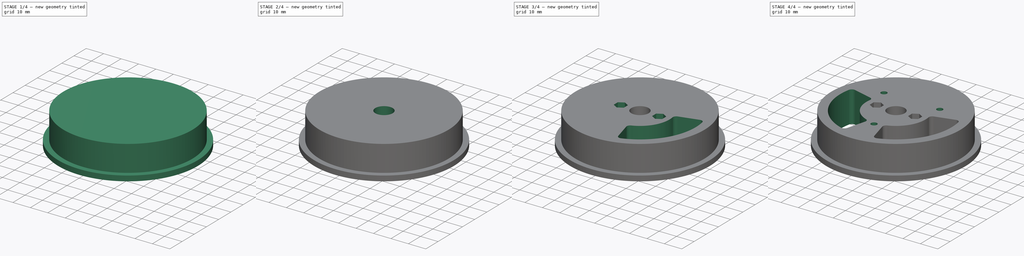
[diagram: build sequence overview — one tinted view per stage of 4, left to right]
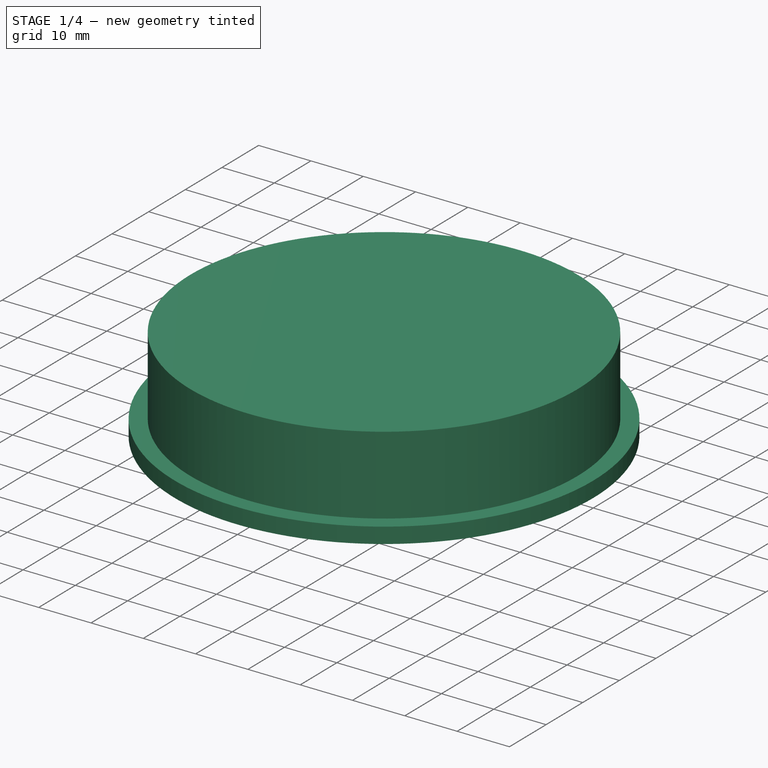
[diagram: stage 1 of 4 — iso view after this stage's code; geometry added in this stage tinted green]
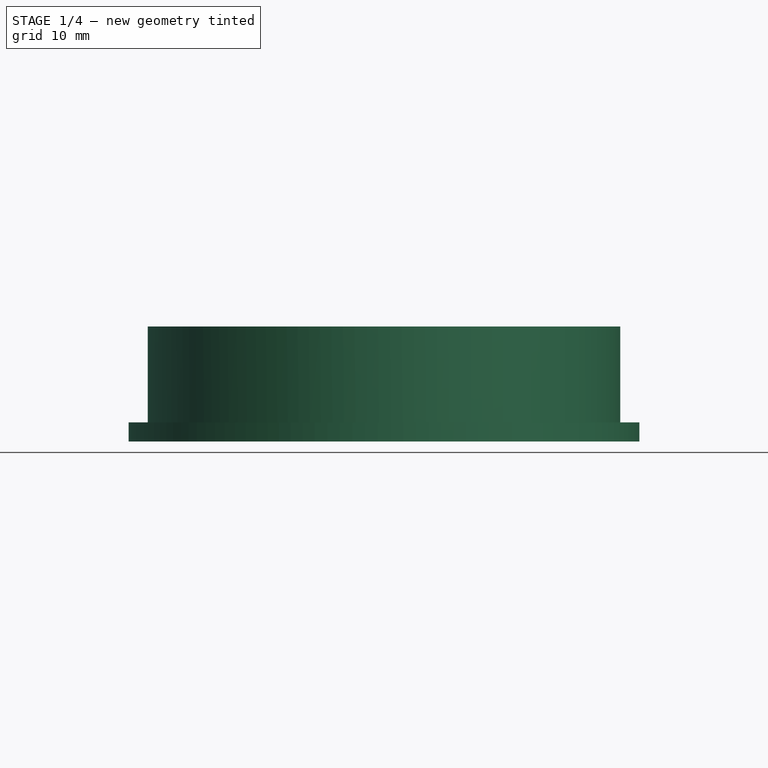
[diagram: stage 1 of 4 — front view after this stage's code; geometry added in this stage tinted green]
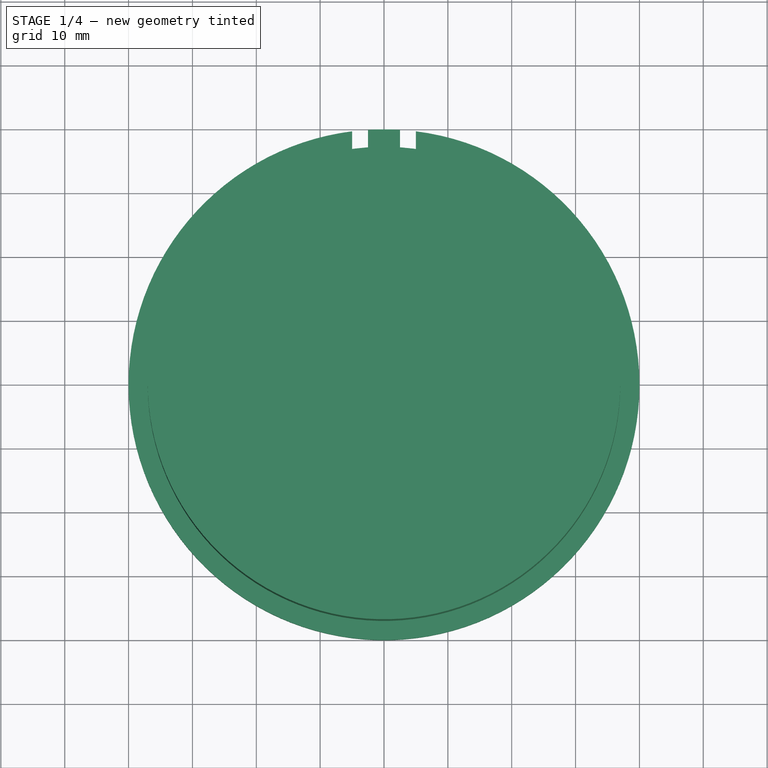
[diagram: stage 1 of 4 — top view after this stage's code; geometry added in this stage tinted green]
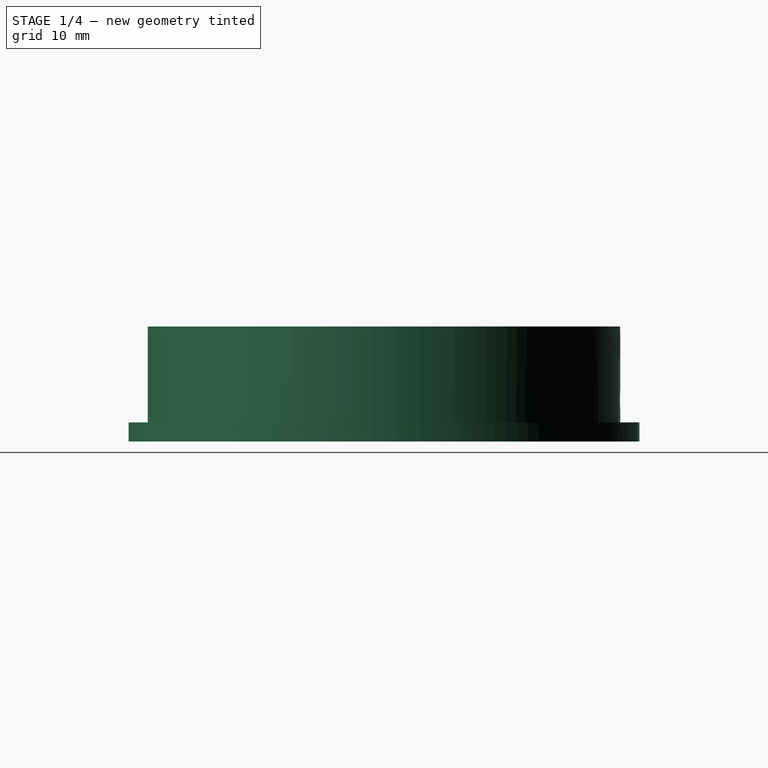
[diagram: stage 1 of 4 — right view after this stage's code; geometry added in this stage tinted green]
FCSTD DOCUMENT  (FreeCAD 0.19R24276 (Git))
Label: Art3Pulley
License: All rights reserved
LicenseURL: http://en.wikipedia.org/wiki/All_rights_reserved
objects: Sketcher::SketchObject×12, PartDesign::Pocket×11, PartDesign::Line×6, PartDesign::CoordinateSystem×4, PartDesign::Plane×2, PartDesign::Revolution×1, Spreadsheet::Sheet×1, PartDesign::Mirrored×1, PartDesign::Body×1
note: 50 computed .brp shape members not serialized (recipe doc carries the construction recipe); baked Part::Feature solids carry a one-line shape summary decoded from their .brp

FEATURE [Sketcher::SketchObject] Sketch
  FullyConstrained = true
  MapMode = 5
  Placement = pos=(0,0,0) rot=(1,0,0;1.5708rad)
  Support = -> [XZ_Plane]
  sketch-geometry (6):
    g0: LineSegment StartX=0 StartY=18 StartZ=0 EndX=37 EndY=18 EndZ=0
    g1: LineSegment StartX=37 StartY=18 StartZ=0 EndX=37 EndY=3 EndZ=0
    g2: LineSegment StartX=37 StartY=3 StartZ=0 EndX=40 EndY=3 EndZ=0
    g3: LineSegment StartX=40 StartY=3 StartZ=0 EndX=40 EndY=0 EndZ=0
    g4: LineSegment StartX=40 StartY=0 StartZ=0 EndX=0 EndY=0 EndZ=0
    g5: LineSegment StartX=0 StartY=0 StartZ=0 EndX=0 EndY=18 EndZ=0
  constraints (17):
    c: PointOnObject(g0,g-2)
    c: Horizontal(g0)
    c: Coincident(g0,g1)
    c: Vertical(g1)
    c: Coincident(g1,g2)
    c: Horizontal(g2)
    c: Coincident(g2,g3)
    c: Vertical(g3)
    c: Coincident(g3,g4)
    c: Coincident(g4,g-1)
    c: Horizontal(g4)
    c: Coincident(g4,g5)
    c: Coincident(g5,g0)
    c: DistanceX(g4,g4) = 40
    c: DistanceX(g0,g0) = 37
    c: DistanceY(g1,g1) = 15
    c: DistanceY(g3,g3) = 3
FEATURE [PartDesign::Revolution] Revolution
  Angle = 360
  Axis = (0,2e-16,1)
  Base = (0,0,0)
  Placement = pos=(0,0,0) rot=(1,0,0;1.5708rad)
  Profile = -> Sketch
  ReferenceAxis = -> Sketch [V_Axis]
  Refine = true
  Reversed = true
FEATURE [Sketcher::SketchObject] Sketch001
  FullyConstrained = true
  MapMode = 5
  Placement = pos=(0,0,0) rot=(1,0,0;3.14159rad)
  Support = -> [Revolution]
  sketch-geometry (14):
    g0: LineSegment StartX=-11.5 StartY=-19.5 StartZ=0 EndX=11.5 EndY=-19.5 EndZ=0
    g1: LineSegment StartX=11.5 StartY=-19.5 StartZ=0 EndX=11.5 EndY=-23 EndZ=0
    g2: LineSegment StartX=11.5 StartY=-23 StartZ=0 EndX=5 EndY=-29.5 EndZ=0
    g3: LineSegment StartX=5 StartY=-29.5 StartZ=0 EndX=5 EndY=-54.5 EndZ=0
    g4: LineSegment StartX=5 StartY=-54.5 StartZ=0 EndX=2.5 EndY=-54.5 EndZ=0
    g5: LineSegment StartX=2.5 StartY=-54.5 StartZ=0 EndX=2.5 EndY=-29.5 EndZ=0
    g6: LineSegment StartX=2.5 StartY=-29.5 StartZ=0 EndX=9 EndY=-23 EndZ=0
    g7: LineSegment StartX=9 StartY=-23 StartZ=0 EndX=-9 EndY=-23 EndZ=0
    g8: LineSegment StartX=-9 StartY=-23 StartZ=0 EndX=-2.5 EndY=-29.5 EndZ=0
    g9: LineSegment StartX=-2.5 StartY=-29.5 StartZ=0 EndX=-2.5 EndY=-54.5 EndZ=0
    g10: LineSegment StartX=-2.5 StartY=-54.5 StartZ=0 EndX=-5 EndY=-54.5 EndZ=0
    g11: LineSegment StartX=-5 StartY=-54.5 StartZ=0 EndX=-5 EndY=-29.5 EndZ=0
    g12: LineSegment StartX=-5 StartY=-29.5 StartZ=0 EndX=-11.5 EndY=-23 EndZ=0
    g13: LineSegment StartX=-11.5 StartY=-23 StartZ=0 EndX=-11.5 EndY=-19.5 EndZ=0
  constraints (38):
    c: Coincident(g0,g1)
    c: Vertical(g1)
    c: Coincident(g1,g2)
    c: Coincident(g2,g3)
    c: Vertical(g3)
    c: Coincident(g3,g4)
    c: Coincident(g4,g5)
    c: Vertical(g5)
    c: Coincident(g5,g6)
    c: Coincident(g6,g7)
    c: Coincident(g7,g8)
    c: Coincident(g8,g9)
    c: Coincident(g9,g10)
    c: Horizontal(g10)
    c: Coincident(g10,g11)
    c: Vertical(g11)
    c: Coincident(g11,g12)
    c: Coincident(g12,g13)
    c: Coincident(g13,g0)
    c: Vertical(g13)
    c: Symmetric(g0,g0,g-2)
    c: Symmetric(g7,g6,g-2)
    c: Equal(g1,g13)
    c: Symmetric(g8,g5,g-2)
    c: Horizontal(g4)
    c: Symmetric(g4,g9,g-2)
    c: Equal(g10,g4)
    c: Equal(g11,g9)
    c: Equal(g5,g3)
    c: Angle(g8,g7) = 0.785398
    c: Parallel(g8,g12)
    c: DistanceX(g4,g4) = 2.5
    c: DistanceY(g5,g5) = 25
    c: DistanceY(g0,g-1) = 19.5
    c: PointOnObject(g12,g7)
    c: DistanceY(g13,g13) = 3.5
    c: DistanceY(g2,g2) = 6.5
    c: DistanceX(g8,g5) = 5
FEATURE [PartDesign::Pocket] Pocket
  BaseFeature = -> Revolution
  Length = 13
  Length2 = 100
  Placement = pos=(0,0,0) rot=(1,0,0;1.5708rad)
  Profile = -> Sketch001
  Refine = true
  Type = 0
FEATURE [PartDesign::Plane] DatumPlane
  AttachmentOffset = pos=(0,0,-40) rot=(0,0,1;0rad)
  Length = 92.4985
  MapMode = 5
  Placement = pos=(0,40,8.9e-15) rot=(1,0,0;1.5708rad)
  ResizeMode = 0
  Support = -> [XZ_Plane]
  Width = 62.6381
FEATURE [Sketcher::SketchObject] Sketch002
  FullyConstrained = true
  MapMode = 5
  Placement = pos=(0,40,8.9e-15) rot=(1,0,0;1.5708rad)
  Support = -> [DatumPlane]
  expr: Constraints[1] = Spreadsheet.M3BoltBodyRadius
  sketch-geometry (1):
    g0: Circle CenterX=0 CenterY=6.5 CenterZ=0 NormalX=0 NormalY=0 NormalZ=1 AngleXU=0 Radius=1.7
  constraints (3):
    c: PointOnObject(g0,g-2)
    c: Radius(g0) = 1.7
    c: DistanceY(g-1,g0) = 6.5
FEATURE [Spreadsheet::Sheet] Spreadsheet
  cells = A2=M3BoltBodyRadius; B2(M3BoltBodyRadius)=1.7; A3=M3BoltHeadRadius; B3(M3BoltHeadRadius)=2.95; A4=M3NutCircumradius; B4(M3NutCircumradius)=3.35; A5=M3NutThickness; B5(M3NutThickness)=3; A6=Bearing655ZZBodyRadius; B6(Bearing655ZZBodyRadius)=8.199999999999999
FEATURE [PartDesign::Pocket] Pocket001
  BaseFeature = -> Pocket
  Length = 0
  Length2 = 100
  Placement = pos=(0,0,0) rot=(1,0,0;1.5708rad)
  Profile = -> Sketch002
  Refine = true
  Reversed = true
  Type = 3
  UpToFace = -> Pocket [Face14]
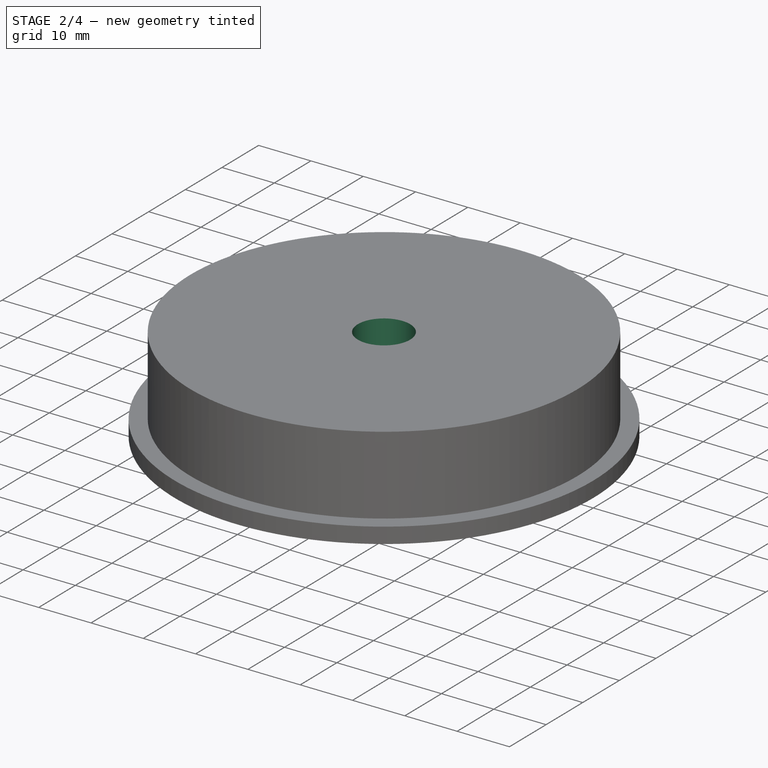
[diagram: stage 2 of 4 — iso view after this stage's code; geometry added in this stage tinted green]
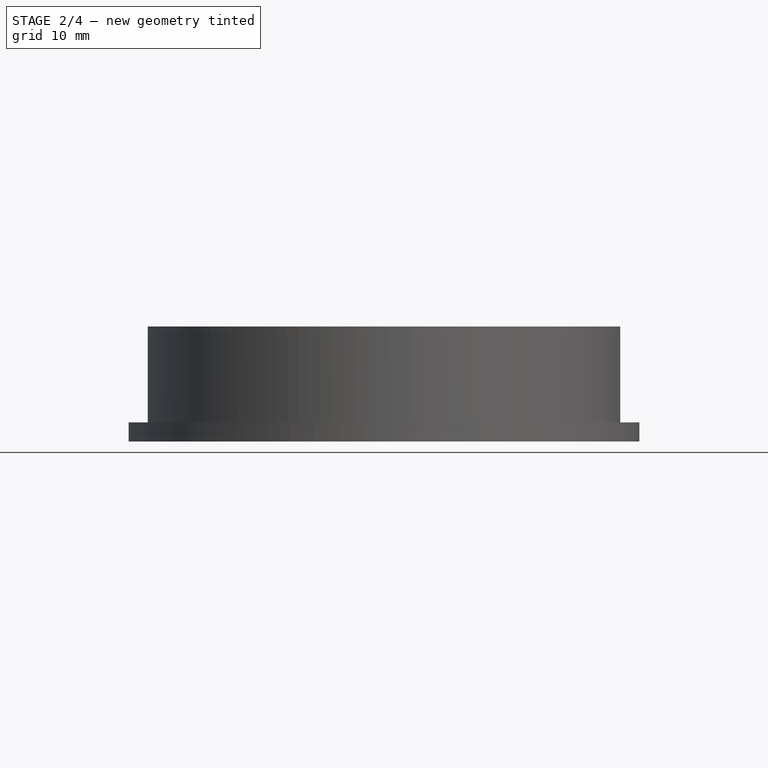
[diagram: stage 2 of 4 — front view after this stage's code; geometry added in this stage tinted green]
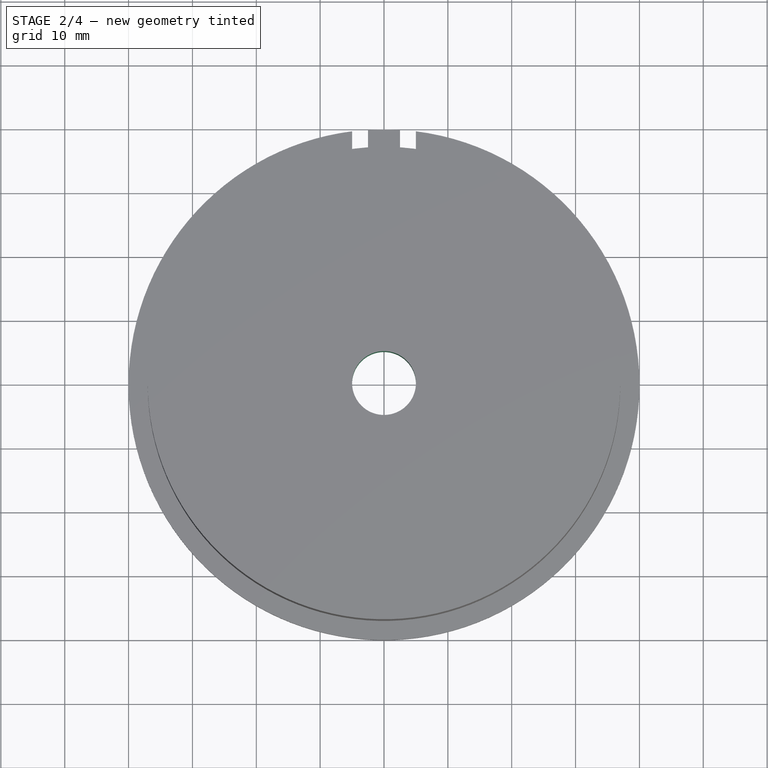
[diagram: stage 2 of 4 — top view after this stage's code; geometry added in this stage tinted green]
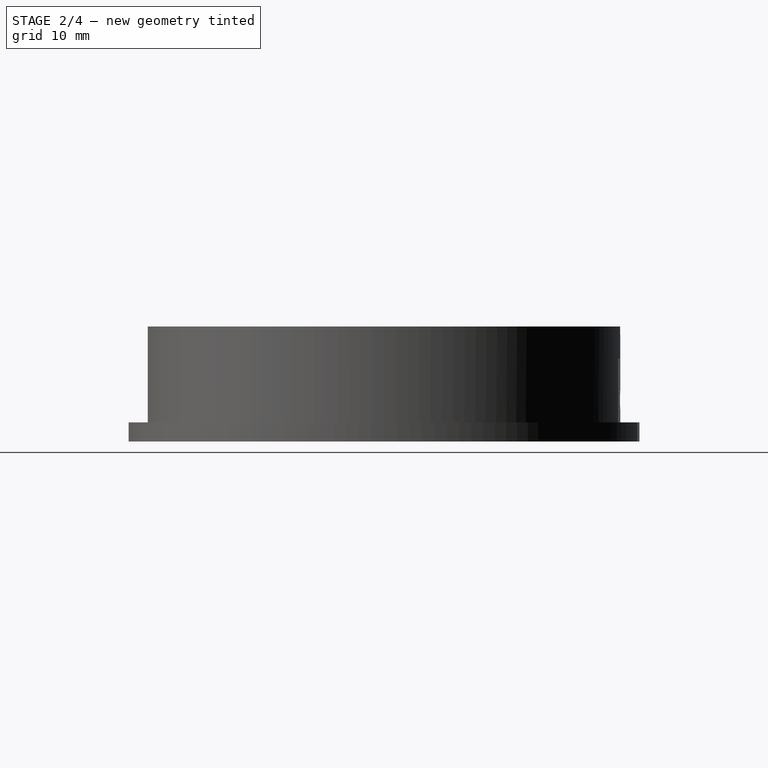
[diagram: stage 2 of 4 — right view after this stage's code; geometry added in this stage tinted green]
FEATURE [PartDesign::Plane] DatumPlane001
  AttachmentOffset = pos=(0,0,-2.85) rot=(0,0,1;0rad)
  Length = 92.4985
  MapMode = 5
  Placement = pos=(0,25.85,-2.87e-14) rot=(1,0,0;1.5708rad)
  ResizeMode = 0
  Support = -> [Pocket001]
  Width = 62.6381
FEATURE [Sketcher::SketchObject] Sketch003
  ExternalGeometry = -> [Pocket001]
  FullyConstrained = true
  MapMode = 5
  Placement = pos=(0,25.85,-2.87e-14) rot=(1,0,0;1.5708rad)
  Support = -> [DatumPlane001]
  expr: Constraints[18] = Spreadsheet.M3NutCircumradius
  sketch-geometry (10):
    g0: LineSegment StartX=0 StartY=9.85 StartZ=0 EndX=-2.90119 EndY=8.175 EndZ=0
    g1: LineSegment StartX=-2.90119 StartY=8.175 StartZ=0 EndX=-2.90119 EndY=4.825 EndZ=0
    g2: LineSegment StartX=-2.90119 StartY=4.825 StartZ=0 EndX=-4e-16 EndY=3.15 EndZ=0
    g3: LineSegment StartX=-3e-16 StartY=3.15 StartZ=0 EndX=2.90119 EndY=4.825 EndZ=0
    g4: LineSegment StartX=2.90119 StartY=4.825 StartZ=0 EndX=2.90119 EndY=8.175 EndZ=0
    g5: LineSegment StartX=2.90119 StartY=8.175 StartZ=0 EndX=0 EndY=9.85 EndZ=0
    g6: Circle CenterX=0 CenterY=6.5 CenterZ=0 NormalX=0 NormalY=0 NormalZ=1 AngleXU=0 Radius=3.35
    g7: LineSegment StartX=-2.90119 StartY=8.175 StartZ=0 EndX=-2.90119 EndY=-1.825 EndZ=0
    g8: LineSegment StartX=-2.90119 StartY=-1.825 StartZ=0 EndX=2.90119 EndY=-1.825 EndZ=0
    g9: LineSegment StartX=2.90119 StartY=-1.825 StartZ=0 EndX=2.90119 EndY=8.175 EndZ=0
  constraints (24):
    c: Coincident(g0,g1)
    c: Coincident(g1,g2)
    c: Coincident(g2,g3)
    c: Coincident(g3,g4)
    c: Coincident(g4,g5)
    c: Coincident(g5,g0)
    c: Equal(g0, g1-g5) x5
    c: PointOnObject(g0,g6)
    c: PointOnObject(g1,g6)
    c: PointOnObject(g2,g6)
    c: PointOnObject(g3,g6)
    c: PointOnObject(g4,g6)
    c: PointOnObject(g5,g6)
    c: PointOnObject(g0,g-2)
    c: Radius(g6) = 3.35
    c: Coincident(g0,g7)
    c: Vertical(g7)
    c: Coincident(g7,g8)
    c: Horizontal(g8)
    c: Coincident(g8,g9)
    c: Coincident(g9,g5)
    c: Vertical(g9)
    c: DistanceY(g9,g9) = 10
    c: Coincident(g6,g-3)
FEATURE [PartDesign::Pocket] Pocket002
  BaseFeature = -> Pocket001
  Length = 3
  Length2 = 100
  Midplane = true
  Placement = pos=(0,0,0) rot=(1,0,0;1.5708rad)
  Profile = -> Sketch003
  Refine = true
  Type = 0
  expr: Length = Spreadsheet.M3NutThickness
FEATURE [Sketcher::SketchObject] Sketch004
  FullyConstrained = true
  MapMode = 5
  Placement = pos=(0,1.19e-14,18) rot=(0,0,1;3.14159rad)
  Support = -> [Pocket002]
  sketch-geometry (1):
    g0: Circle CenterX=0 CenterY=0 CenterZ=0 NormalX=0 NormalY=0 NormalZ=1 AngleXU=0 Radius=5
  constraints (2):
    c: Coincident(g0,g-1)
    c: Radius(g0) = 5
FEATURE [PartDesign::Pocket] Pocket003
  BaseFeature = -> Pocket002
  Length = 5
  Length2 = 100
  Placement = pos=(0,0,0) rot=(1,0,0;1.5708rad)
  Profile = -> Sketch004
  Refine = true
  Type = 1
FEATURE [Sketcher::SketchObject] Sketch005
  FullyConstrained = true
  MapMode = 5
  Placement = pos=(0,0,0) rot=(1,0,0;3.14159rad)
  Support = -> [Pocket003]
  expr: Constraints[1] = Spreadsheet.Bearing655ZZBodyRadius
  sketch-geometry (1):
    g0: Circle CenterX=0 CenterY=0 CenterZ=0 NormalX=0 NormalY=0 NormalZ=1 AngleXU=0 Radius=8.2
  constraints (2):
    c: Coincident(g0,g-1)
    c: Radius(g0) = 8.2
FEATURE [PartDesign::Pocket] Pocket004
  BaseFeature = -> Pocket003
  Length = 9
  Length2 = 100
  Placement = pos=(0,0,0) rot=(1,0,0;1.5708rad)
  Profile = -> Sketch005
  Refine = true
  Type = 0
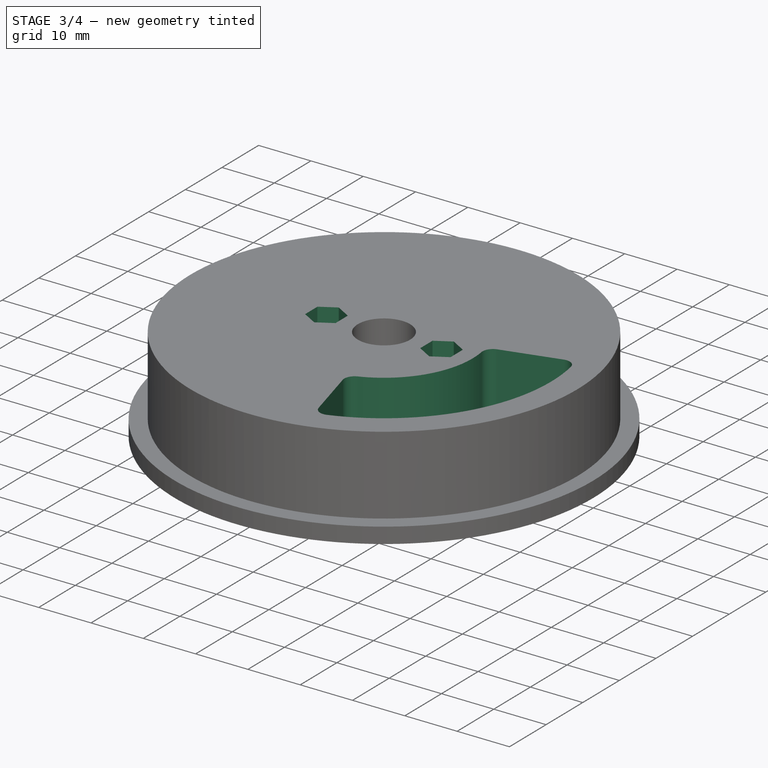
[diagram: stage 3 of 4 — iso view after this stage's code; geometry added in this stage tinted green]
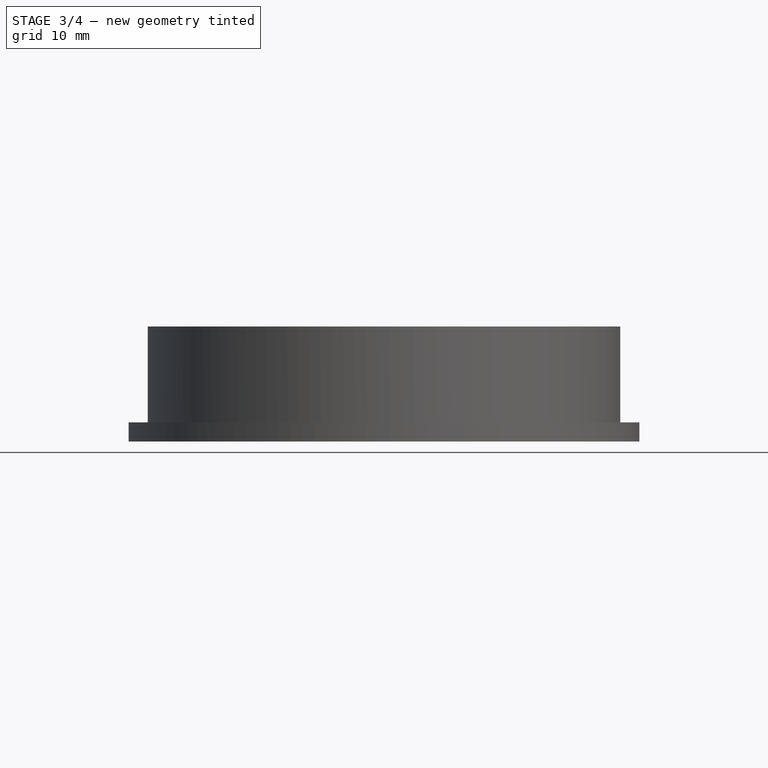
[diagram: stage 3 of 4 — front view after this stage's code; geometry added in this stage tinted green]
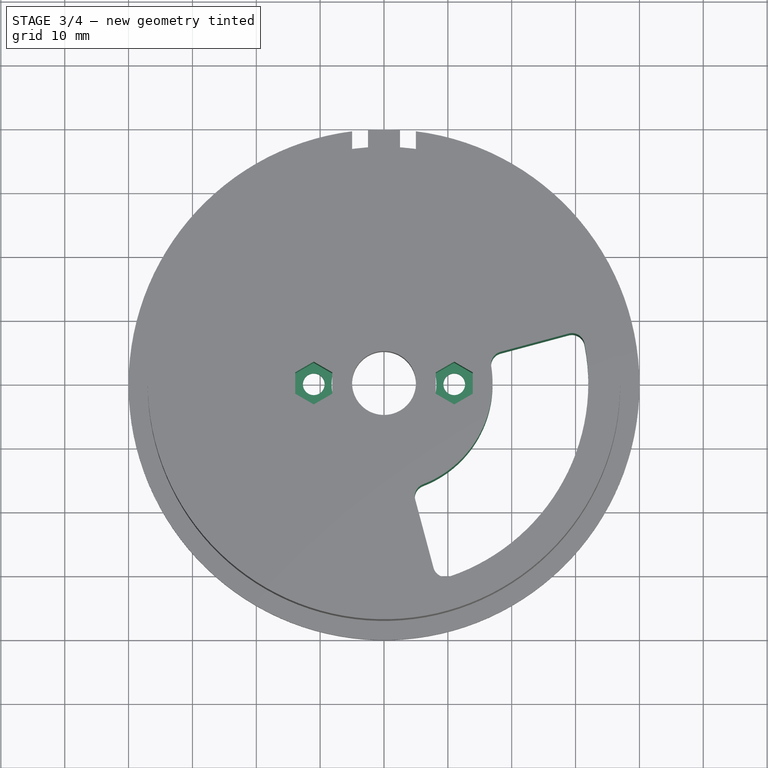
[diagram: stage 3 of 4 — top view after this stage's code; geometry added in this stage tinted green]
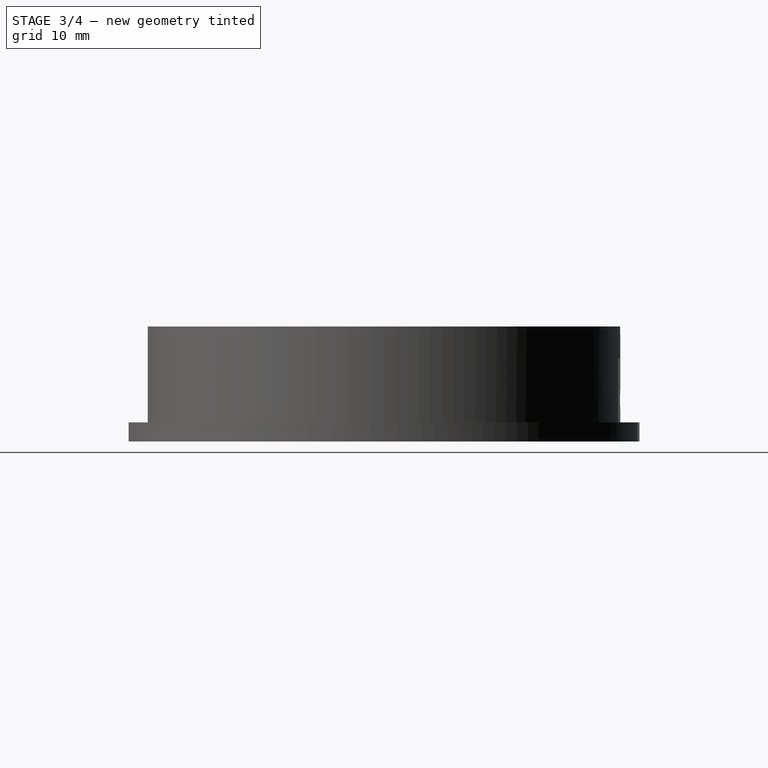
[diagram: stage 3 of 4 — right view after this stage's code; geometry added in this stage tinted green]
FEATURE [Sketcher::SketchObject] Sketch006
  FullyConstrained = true
  MapMode = 5
  Placement = pos=(0,0,0) rot=(1,0,0;3.14159rad)
  Support = -> [Pocket004]
  sketch-geometry (4):
    g0: LineSegment StartX=-15.3 StartY=3.5 StartZ=0 EndX=15.3 EndY=3.5 EndZ=0
    g1: LineSegment StartX=15.3 StartY=3.5 StartZ=0 EndX=15.3 EndY=-3.5 EndZ=0
    g2: LineSegment StartX=15.3 StartY=-3.5 StartZ=0 EndX=-15.3 EndY=-3.5 EndZ=0
    g3: LineSegment StartX=-15.3 StartY=-3.5 StartZ=0 EndX=-15.3 EndY=3.5 EndZ=0
  constraints (10):
    c: Coincident(g0,g1)
    c: Coincident(g1,g2)
    c: Coincident(g2,g3)
    c: Coincident(g3,g0)
    c: Horizontal(g0)
    c: Vertical(g3)
    c: Symmetric(g1,g0,g-1)
    c: Symmetric(g1,g2,g-2)
    c: DistanceX(g0,g0) = 30.6
    c: DistanceY(g3,g3) = 7
FEATURE [PartDesign::Pocket] Pocket005
  BaseFeature = -> Pocket004
  Length = 4
  Length2 = 100
  Placement = pos=(0,0,0) rot=(1,0,0;1.5708rad)
  Profile = -> Sketch006
  Refine = true
  Type = 0
FEATURE [Sketcher::SketchObject] Sketch007
  FullyConstrained = true
  MapMode = 5
  Placement = pos=(0,1.24e-14,4) rot=(1,0,0;3.14159rad)
  Support = -> [Pocket005]
  expr: Constraints[4] = Spreadsheet.M3BoltBodyRadius
  sketch-geometry (2):
    g0: Circle CenterX=-11 CenterY=0 CenterZ=0 NormalX=0 NormalY=0 NormalZ=1 AngleXU=0 Radius=1.7
    g1: Circle CenterX=11 CenterY=0 CenterZ=0 NormalX=0 NormalY=0 NormalZ=1 AngleXU=0 Radius=1.7
  constraints (5):
    c: PointOnObject(g0,g-1)
    c: Symmetric(g1,g0,g-2)
    c: DistanceX(g0,g1) = 22
    c: Equal(g0,g1)
    c: Radius(g1) = 1.7
FEATURE [PartDesign::Pocket] Pocket006
  BaseFeature = -> Pocket005
  Length = 5
  Length2 = 100
  Placement = pos=(0,0,0) rot=(1,0,0;1.5708rad)
  Profile = -> Sketch007
  Refine = true
  Type = 1
FEATURE [Sketcher::SketchObject] Sketch008
  ExternalGeometry = -> [Pocket006]
  FullyConstrained = true
  MapMode = 5
  Placement = pos=(0,1.19e-14,18) rot=(0,0,1;3.14159rad)
  Support = -> [Pocket006]
  expr: Constraints[37] = Spreadsheet.M3NutCircumradius
  sketch-geometry (14):
    g0: LineSegment StartX=11 StartY=3.35 StartZ=0 EndX=8.09881 EndY=1.675 EndZ=0
    g1: LineSegment StartX=8.09881 StartY=1.675 StartZ=0 EndX=8.09881 EndY=-1.675 EndZ=0
    g2: LineSegment StartX=8.09881 StartY=-1.675 StartZ=0 EndX=11 EndY=-3.35 EndZ=0
    g3: LineSegment StartX=11 StartY=-3.35 StartZ=0 EndX=13.9012 EndY=-1.675 EndZ=0
    g4: LineSegment StartX=13.9012 StartY=-1.675 StartZ=0 EndX=13.9012 EndY=1.675 EndZ=0
    g5: LineSegment StartX=13.9012 StartY=1.675 StartZ=0 EndX=11 EndY=3.35 EndZ=0
    g6: Circle CenterX=11 CenterY=0 CenterZ=0 NormalX=0 NormalY=0 NormalZ=1 AngleXU=0 Radius=3.35
    g7: LineSegment StartX=-11 StartY=3.35 StartZ=0 EndX=-13.9012 EndY=1.675 EndZ=0
    g8: LineSegment StartX=-13.9012 StartY=1.675 StartZ=0 EndX=-13.9012 EndY=-1.675 EndZ=0
    g9: LineSegment StartX=-13.9012 StartY=-1.675 StartZ=0 EndX=-11 EndY=-3.35 EndZ=0
    g10: LineSegment StartX=-11 StartY=-3.35 StartZ=0 EndX=-8.09881 EndY=-1.675 EndZ=0
    g11: LineSegment StartX=-8.09881 StartY=-1.675 StartZ=0 EndX=-8.09881 EndY=1.675 EndZ=0
    g12: LineSegment StartX=-8.09881 StartY=1.675 StartZ=0 EndX=-11 EndY=3.35 EndZ=0
    g13: Circle CenterX=-11 CenterY=0 CenterZ=0 NormalX=0 NormalY=0 NormalZ=1 AngleXU=0 Radius=3.35
  constraints (32):
    c: Coincident(g0,g1)
    c: Coincident(g1,g2)
    c: Coincident(g2,g3)
    c: Coincident(g3,g4)
    c: Coincident(g4,g5)
    c: Coincident(g5,g0)
    c: Equal(g0, g1-g5) x5
    c: PointOnObject(g0,g6)
    c: PointOnObject(g1,g6)
    c: PointOnObject(g2,g6)
    c: PointOnObject(g3,g6)
    c: PointOnObject(g4,g6)
    c: PointOnObject(g5,g6)
    c: Coincident(g6,g-3)
    c: Coincident(g7,g8)
    c: Coincident(g8,g9)
    c: Coincident(g9,g10)
    c: Coincident(g10,g11)
    c: Coincident(g11,g12)
    c: Coincident(g12,g7)
    c: Equal(g7, g8-g12) x5
    c: PointOnObject(g7,g13)
    c: PointOnObject(g8,g13)
    c: PointOnObject(g9,g13)
    c: PointOnObject(g10,g13)
    c: PointOnObject(g11,g13)
    c: PointOnObject(g12,g13)
    c: Coincident(g13,g-4)
    c: Equal(g13,g6)
    c: Radius(g6) = 3.35
    c: Vertical(g1)
    c: Vertical(g11)
FEATURE [PartDesign::Pocket] Pocket007
  BaseFeature = -> Pocket006
  Length = 11
  Length2 = 100
  Placement = pos=(0,0,0) rot=(1,0,0;1.5708rad)
  Profile = -> Sketch008
  Refine = true
  Type = 0
FEATURE [Sketcher::SketchObject] Sketch009
  FullyConstrained = true
  MapMode = 5
  Placement = pos=(0,0,0) rot=(1,0,0;3.14159rad)
  Support = -> [Pocket007]
  sketch-geometry (10):
    g0: ArcOfCircle CenterX=0 CenterY=0 CenterZ=0 NormalX=0 NormalY=0 NormalZ=1 AngleXU=0 Radius=17 StartAngle=6.12684 EndAngle=7.48672
    g1: ArcOfCircle CenterX=0 CenterY=0 CenterZ=0 NormalX=0 NormalY=0 NormalZ=1 AngleXU=0 Radius=32 StartAngle=6.0881 EndAngle=7.52547
    g2: LineSegment StartX=4.89024 StartY=18.2506 StartZ=0 EndX=7.7473 EndY=28.9133 EndZ=0
    g3: LineSegment StartX=18.2506 StartY=-4.89024 StartZ=0 EndX=28.9133 EndY=-7.7473 EndZ=0
    g4: LineSegment StartX=18.2506 StartY=-4.89024 StartZ=0 EndX=0 EndY=9e-16 EndZ=0
    g5: LineSegment StartX=4.89024 StartY=18.2506 StartZ=0 EndX=0 EndY=0 EndZ=0
    g6: ArcOfCircle CenterX=9.67915 CenterY=28.3957 CenterZ=0 NormalX=0 NormalY=0 NormalZ=1 AngleXU=0 Radius=2 StartAngle=1.24228 EndAngle=2.87979
    g7: ArcOfCircle CenterX=6.82209 CenterY=17.733 CenterZ=0 NormalX=0 NormalY=0 NormalZ=1 AngleXU=0 Radius=2 StartAngle=2.87979 EndAngle=4.34513
    g8: ArcOfCircle CenterX=18.7683 CenterY=-2.95839 CenterZ=0 NormalX=0 NormalY=0 NormalZ=1 AngleXU=0 Radius=2 StartAngle=2.98525 EndAngle=4.45059
    g9: ArcOfCircle CenterX=29.4309 CenterY=-5.81545 CenterZ=0 NormalX=0 NormalY=0 NormalZ=1 AngleXU=0 Radius=2 StartAngle=4.45059 EndAngle=6.0881
  constraints (22):
    c: Coincident(g0,g-1)
    c: Coincident(g1,g0)
    c: Angle(g-1,g2) = 1.309
    c: Angle(g-1,g3) = 2.87979
    c: Radius(g0) = 17
    c: Radius(g1) = 32
    c: Coincident(g4,g0)
    c: Coincident(g5,g0)
    c: Tangent(g2,g6) = 1.5708
    c: Tangent(g1,g6) = -1.5708
    c: Tangent(g0,g7) = 1.5708
    c: Tangent(g2,g7) = 1.5708
    c: Tangent(g0,g8) = 1.5708
    c: Tangent(g3,g8) = -1.5708
    c: Tangent(g3,g9) = -1.5708
    c: Tangent(g1,g9) = -1.5708
    c: Equal(g9,g8)
    c: Equal(g8,g7)
    c: Equal(g7,g6)
    c: Radius(g6) = 2
    c: Tangent(g3,g4) = 1.5708
    c: Tangent(g5,g2) = 1.5708
FEATURE [PartDesign::Pocket] Pocket008
  BaseFeature = -> Pocket007
  Length = 5
  Length2 = 100
  Placement = pos=(0,0,0) rot=(1,0,0;1.5708rad)
  Profile = -> Sketch009
  Refine = true
  Type = 1
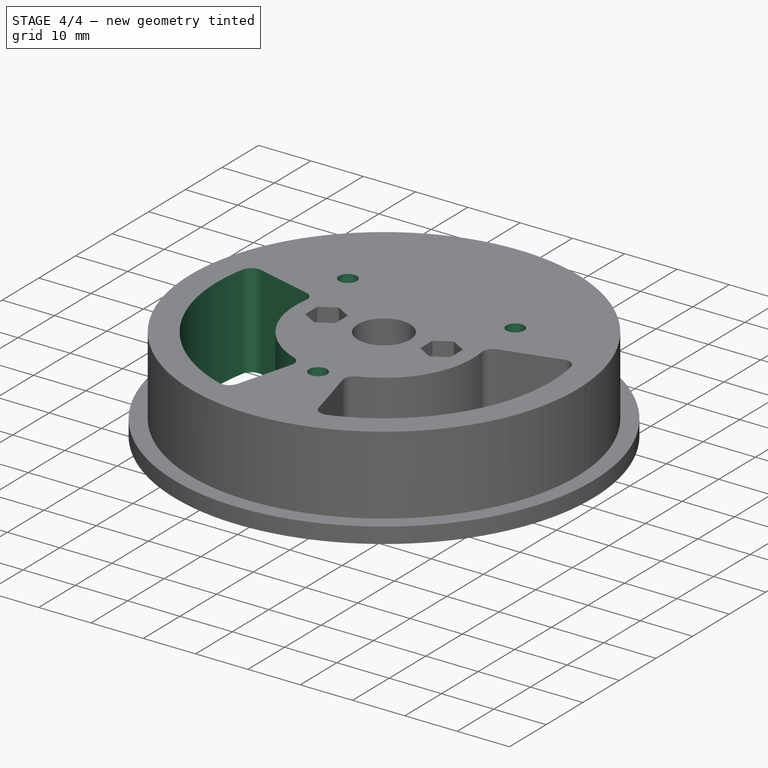
[diagram: stage 4 of 4 — iso view after this stage's code; geometry added in this stage tinted green]
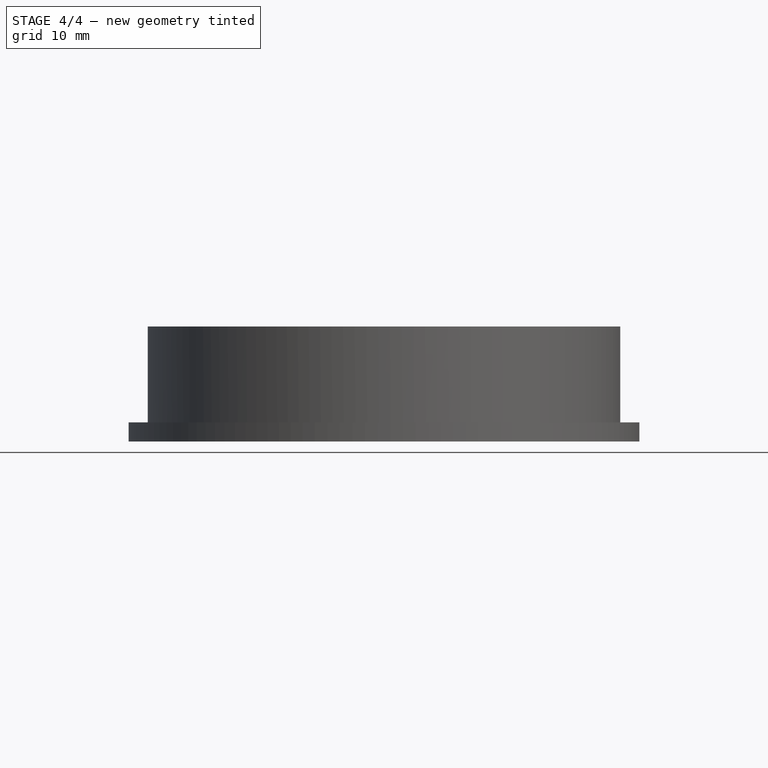
[diagram: stage 4 of 4 — front view after this stage's code; geometry added in this stage tinted green]
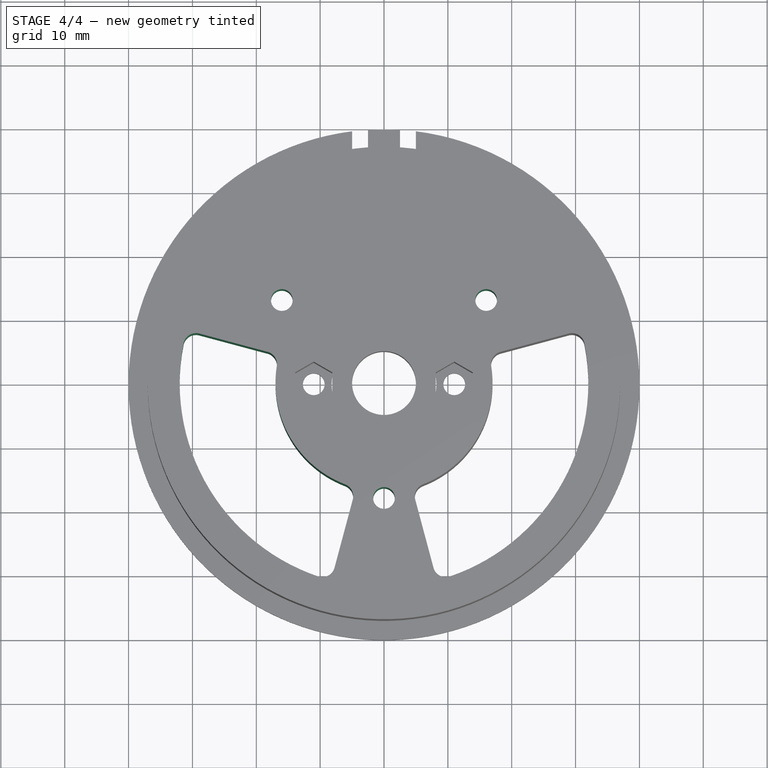
[diagram: stage 4 of 4 — top view after this stage's code; geometry added in this stage tinted green]
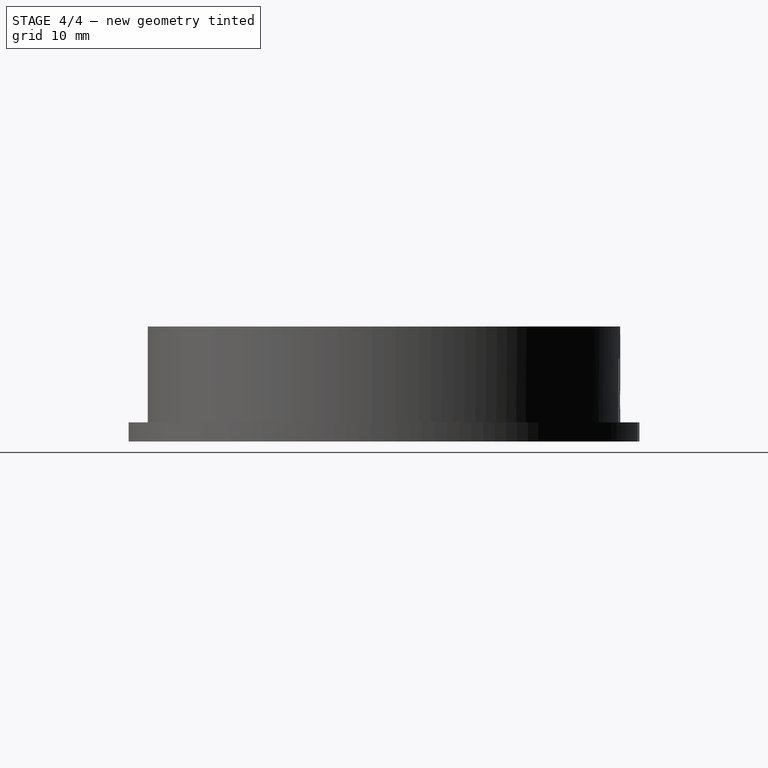
[diagram: stage 4 of 4 — right view after this stage's code; geometry added in this stage tinted green]
FEATURE [PartDesign::Mirrored] Mirrored
  BaseFeature = -> Pocket008
  MirrorPlane = -> Sketch009 [V_Axis]
  Originals = -> [Pocket008]
  Placement = pos=(0,0,0) rot=(1,0,0;1.5708rad)
  Refine = true
FEATURE [Sketcher::SketchObject] Sketch010
  FullyConstrained = true
  MapMode = 5
  Placement = pos=(0,0,0) rot=(1,0,0;3.14159rad)
  Support = -> [Mirrored]
  expr: Constraints[4] = Spreadsheet.M3BoltBodyRadius
  sketch-geometry (3):
    g0: Circle CenterX=0 CenterY=18 CenterZ=0 NormalX=0 NormalY=0 NormalZ=1 AngleXU=0 Radius=1.7
    g1: Circle CenterX=-16 CenterY=-13 CenterZ=0 NormalX=0 NormalY=0 NormalZ=1 AngleXU=0 Radius=1.7
    g2: Circle CenterX=16 CenterY=-13 CenterZ=0 NormalX=0 NormalY=0 NormalZ=1 AngleXU=0 Radius=1.7
  constraints (8):
    c: PointOnObject(g0,g-2)
    c: Equal(g2,g0)
    c: Equal(g0,g1)
    c: Symmetric(g1,g2,g-2)
    c: Radius(g2) = 1.7
    c: DistanceY(g-1,g0) = 18
    c: DistanceY(g1,g-1) = 13
    c: DistanceX(g1,g-1) = 16
FEATURE [PartDesign::Pocket] Pocket009
  BaseFeature = -> Mirrored
  Length = 5
  Length2 = 100
  Placement = pos=(0,0,0) rot=(1,0,0;1.5708rad)
  Profile = -> Sketch010
  Refine = true
  Type = 1
FEATURE [Sketcher::SketchObject] Sketch011
  ExternalGeometry = -> [Pocket009]
  FullyConstrained = true
  MapMode = 5
  Placement = pos=(0,0,0) rot=(1,0,0;3.14159rad)
  Support = -> [Pocket009]
  expr: Constraints[5] = Spreadsheet.M3BoltHeadRadius
  sketch-geometry (3):
    g0: Circle CenterX=0 CenterY=18 CenterZ=0 NormalX=0 NormalY=0 NormalZ=1 AngleXU=0 Radius=2.95
    g1: Circle CenterX=16 CenterY=-13 CenterZ=0 NormalX=0 NormalY=0 NormalZ=1 AngleXU=0 Radius=2.95
    g2: Circle CenterX=-16 CenterY=-13 CenterZ=0 NormalX=0 NormalY=0 NormalZ=1 AngleXU=0 Radius=2.95
  constraints (6):
    c: Coincident(g0,g-3)
    c: Coincident(g1,g-4)
    c: Coincident(g2,g-5)
    c: Equal(g2,g1)
    c: Equal(g1,g0)
    c: Radius(g0) = 2.95
FEATURE [PartDesign::Pocket] Pocket010
  BaseFeature = -> Pocket009
  Length = 3
  Length2 = 100
  Placement = pos=(0,0,0) rot=(1,0,0;1.5708rad)
  Profile = -> Sketch011
  Refine = true
  Type = 0
FEATURE [PartDesign::CoordinateSystem] LCS_Art3Pulley
  AttacherType = Attacher::AttachEngine3D
  MapMode = 45
  Placement = pos=(8e-15,2.66667,18) rot=(0,0,1;0rad)
  Support = -> [Pocket010]
FEATURE [PartDesign::CoordinateSystem] LCS_Bearing
  AttacherType = Attacher::AttachEngine3D
  MapMode = 11
  Placement = pos=(9e-16,2.6e-14,9) rot=(0,0,-1;1.5708rad)
  Support = -> [Pocket010]
FEATURE [PartDesign::CoordinateSystem] LCS_BearingFix
  AttacherType = Attacher::AttachEngine3D
  MapMode = 45
  Placement = pos=(9.3e-15,1.38e-14,4) rot=(0,0,1;1.5708rad)
  Support = -> [Pocket010]
FEATURE [PartDesign::CoordinateSystem] LCS_Belt
  AttacherType = Attacher::AttachEngine3D
  MapMode = 45
  Placement = pos=(0,23,-2.81e-14) rot=(0.57735,0.57735,0.57735;2.0944rad)
  Support = -> [Pocket010]
FEATURE [PartDesign::Line] HoleAxis_1
  AttacherType = Attacher::AttachEngineLine
  Length = 4.79083
  MapMode = 19
  Placement = pos=(16,13,3) rot=(-1,0,0;3.14159rad)
  ResizeMode = 1
  Support = -> [Pocket010]
FEATURE [PartDesign::Line] HoleAxis_2
  AttacherType = Attacher::AttachEngineLine
  Length = 4.79083
  MapMode = 19
  Placement = pos=(-16,13,3) rot=(-1,0,0;3.14159rad)
  ResizeMode = 1
  Support = -> [Pocket010]
FEATURE [PartDesign::Line] HoleAxis_3
  AttacherType = Attacher::AttachEngineLine
  Length = 4.79083
  MapMode = 19
  Placement = pos=(-2e-16,27.35,6.5) rot=(-1,0,0;1.5708rad)
  ResizeMode = 1
  Support = -> [Pocket010]
FEATURE [PartDesign::Line] HoleAxis_4
  AttacherType = Attacher::AttachEngineLine
  Length = 4.79083
  MapMode = 19
  Placement = pos=(-2e-16,-18,3) rot=(-1,0,0;3.14159rad)
  ResizeMode = 1
  Support = -> [Pocket010]
FEATURE [PartDesign::Line] HoleAxis_5
  AttacherType = Attacher::AttachEngineLine
  Length = 4.79083
  MapMode = 19
  Placement = pos=(11,2.95e-14,7) rot=(-1,0,0;3.14159rad)
  ResizeMode = 1
  Support = -> [Pocket010]
FEATURE [PartDesign::Line] HoleAxis_6
  AttacherType = Attacher::AttachEngineLine
  Length = 4.79083
  MapMode = 19
  Placement = pos=(-11,2.95e-14,7) rot=(-1,0,0;3.14159rad)
  ResizeMode = 1
  Support = -> [Pocket010]
FEATURE [PartDesign::Body] Body  label="Art3Pulley"
  Group = -> [Sketch,Revolution,Sketch001,Pocket,DatumPlane,Sketch002,Pocket001,DatumPlane001,Sketch003,Pocket002,Sketch004,Pocket003,Sketch005,Pocket004,Sketch006,Pocket005,Sketch007,Pocket006,Sketch008,Pocket007,Sketch009,Pocket008,Mirrored,Sketch010,Pocket009,Sketch011,Pocket010,LCS_Art3Pulley,LCS_Bearing,LCS_BearingFix,LCS_Belt,HoleAxis_1,HoleAxis_2,HoleAxis_3,HoleAxis_4,HoleAxis_5,HoleAxis_6]
  Origin = -> Origin
  Tip = -> Pocket010
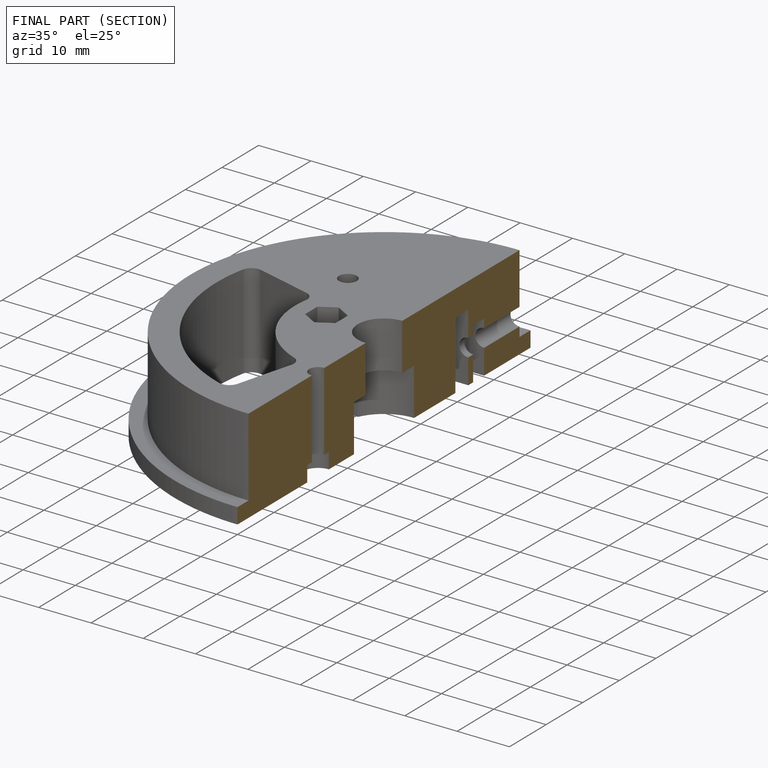
[diagram: finished part — half-section view (interior)]
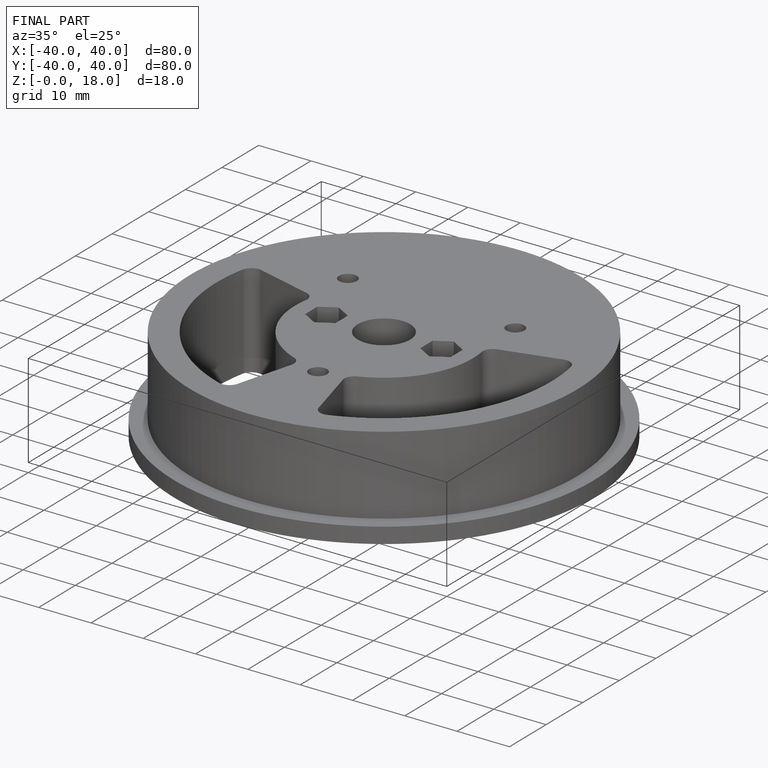
[diagram: finished part — iso view with bounding-box wireframe]
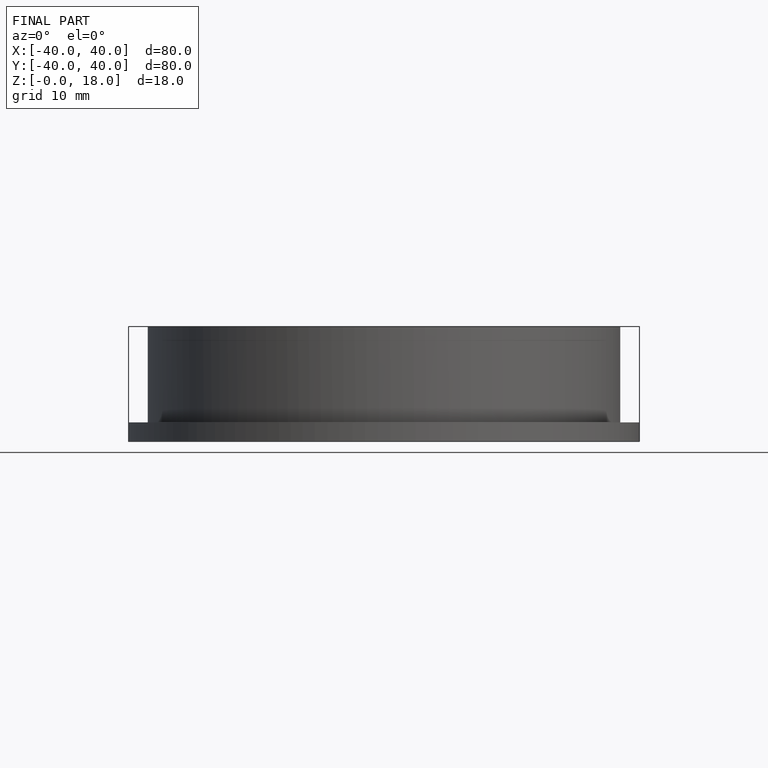
[diagram: finished part — front view with bounding-box wireframe]
